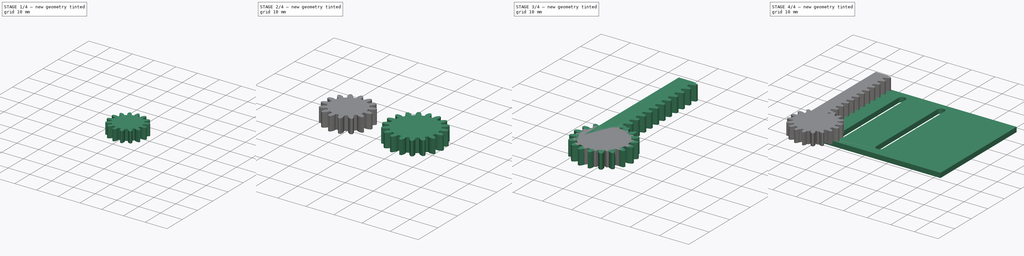
[diagram: build sequence overview — one tinted view per stage of 4, left to right]
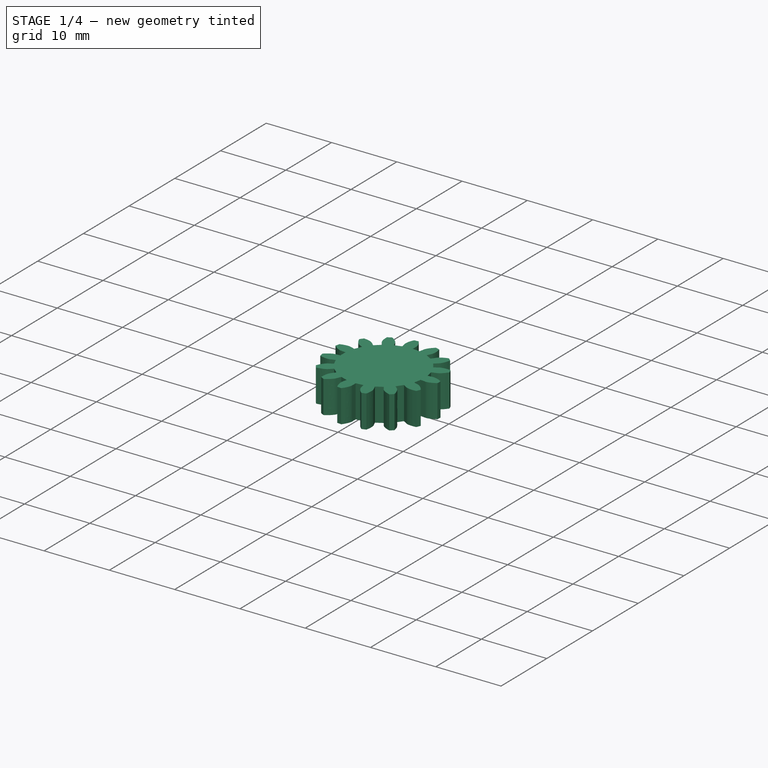
[diagram: stage 1 of 4 — iso view after this stage's code; geometry added in this stage tinted green]
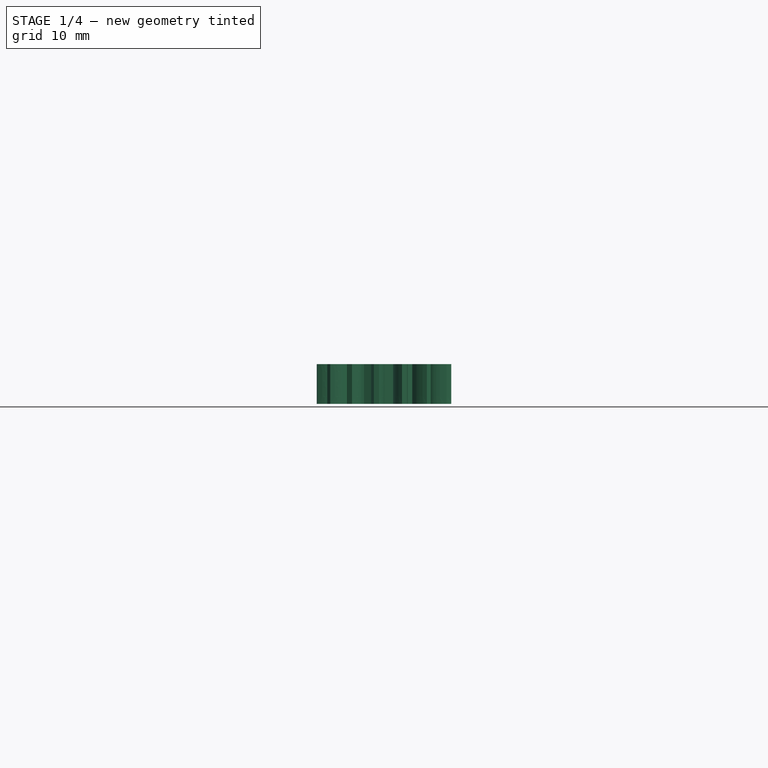
[diagram: stage 1 of 4 — front view after this stage's code; geometry added in this stage tinted green]
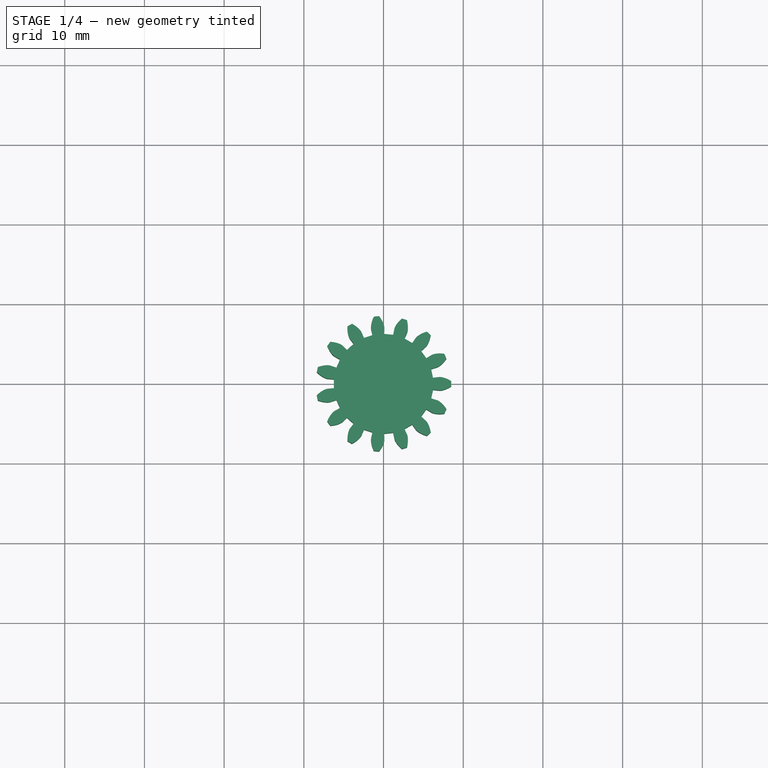
[diagram: stage 1 of 4 — top view after this stage's code; geometry added in this stage tinted green]
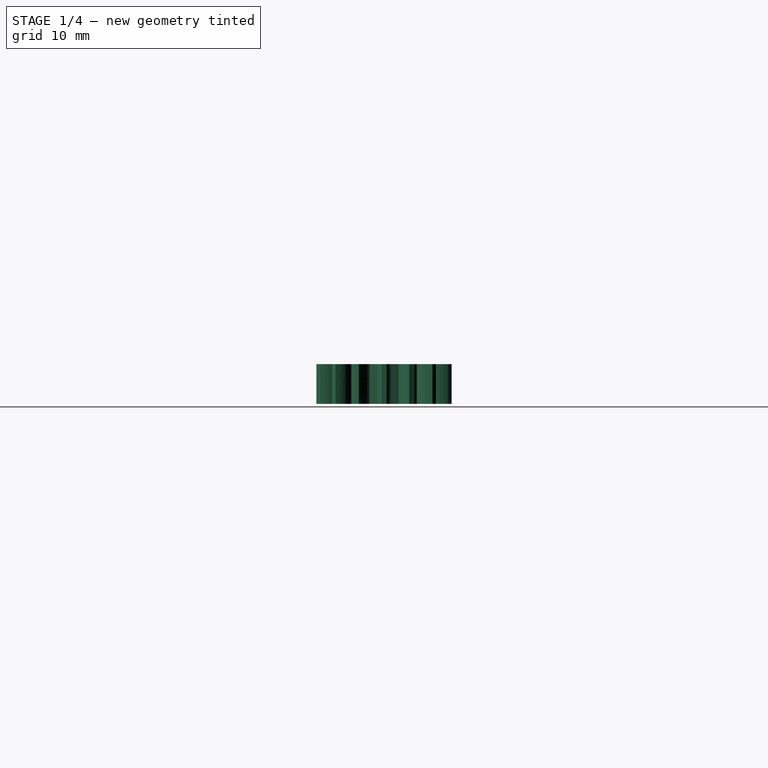
[diagram: stage 1 of 4 — right view after this stage's code; geometry added in this stage tinted green]
FCSTD DOCUMENT  (FreeCAD 0.18R14221 +674 (Git))
Label: gears
License: All rights reserved
LicenseURL: http://en.wikipedia.org/wiki/All_rights_reserved
objects: Part::FeaturePython×3, PartDesign::FeatureBase×3, Sketcher::SketchObject×3, PartDesign::Pad×3, PartDesign::Body×3
note: 18 computed .brp shape members not serialized (recipe doc carries the construction recipe); baked Part::Feature solids carry a one-line shape summary decoded from their .brp

FEATURE [PartDesign::Body] Body001  label="gear18"
  BaseFeature = -> InvoluteGear001
  Group = -> [BaseFeature001,Sketch002,Pad002]
  Origin = -> Origin001
  Placement = pos=(38,0,0) rot=(0,0,-1;1.41372rad)
  Tip = -> Pad002
FEATURE [Part::FeaturePython] InvoluteGear  # WARN: FeaturePython — macro-defined, semantics opaque (R4)
  backlash = 0
  beta = 0
  clearance = 0.25
  double_helix = false
  head = 0
  height = 5
  module = 1
  numpoints = 6
  pressure_angle = 20
  reversed_backlash = false
  shift = 0
  simple = false
  teeth = 15
  undercut = false
FEATURE [PartDesign::FeatureBase] BaseFeature002
  BaseFeature = -> InvoluteGear
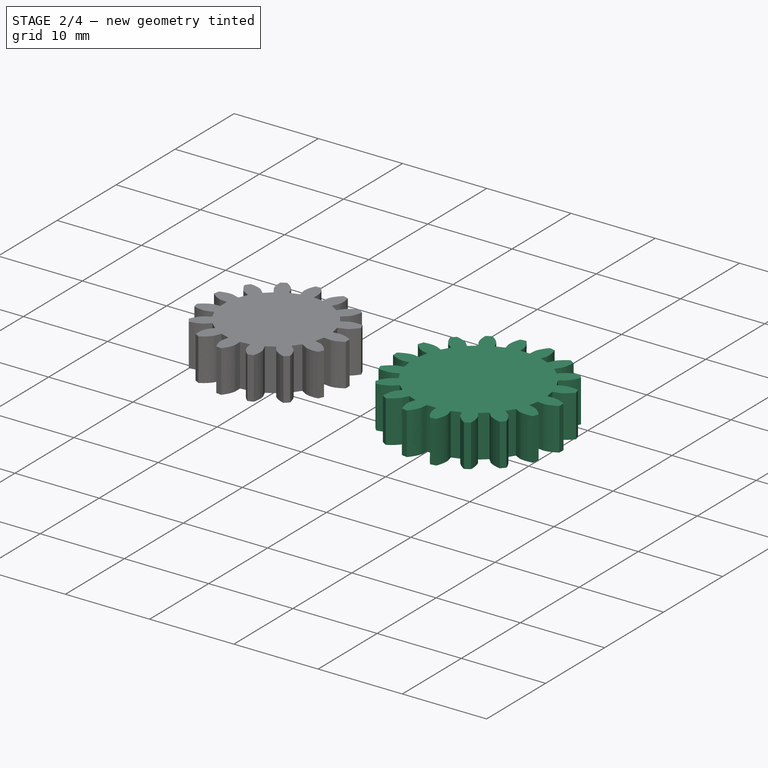
[diagram: stage 2 of 4 — iso view after this stage's code; geometry added in this stage tinted green]
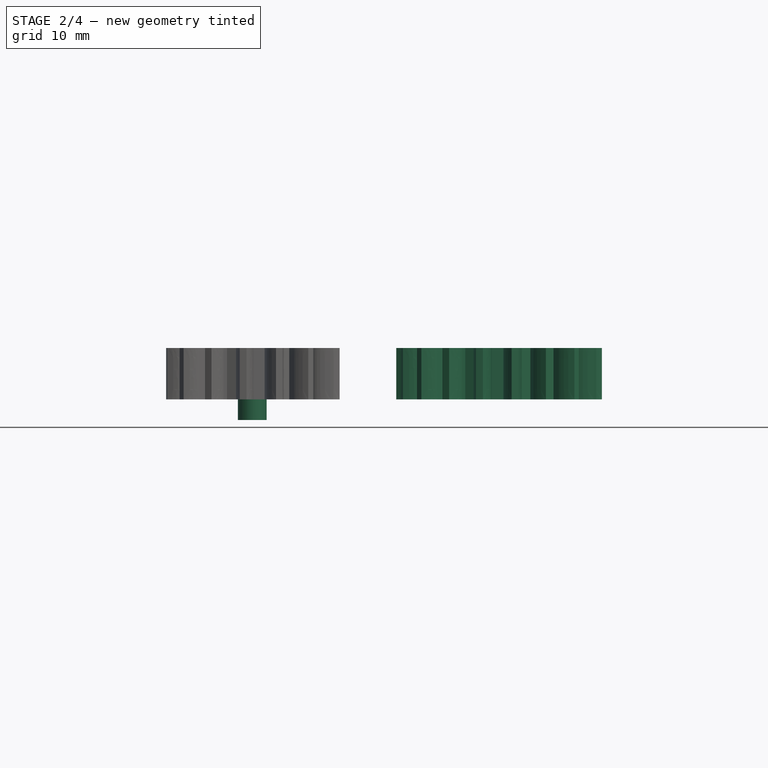
[diagram: stage 2 of 4 — front view after this stage's code; geometry added in this stage tinted green]
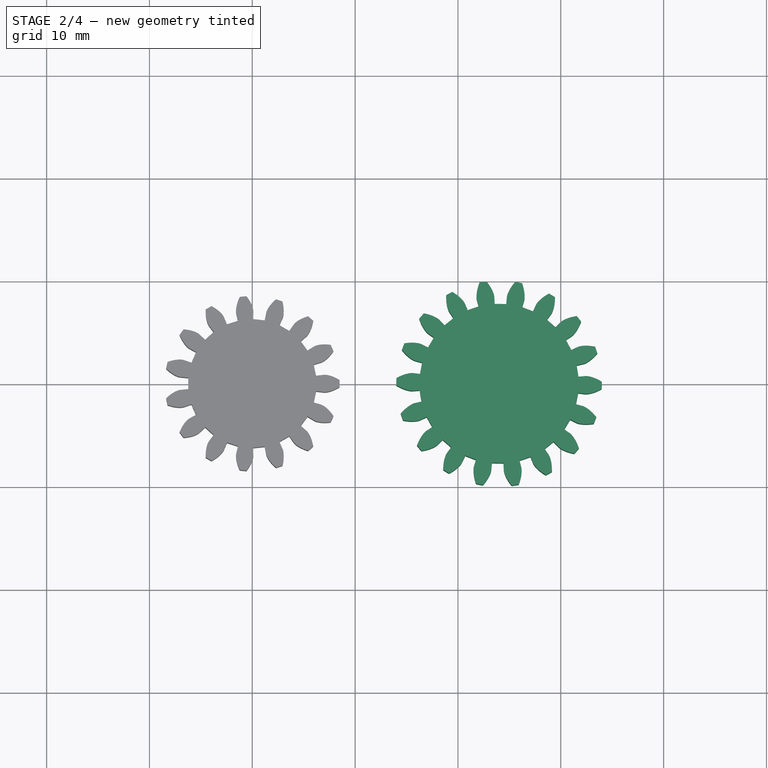
[diagram: stage 2 of 4 — top view after this stage's code; geometry added in this stage tinted green]
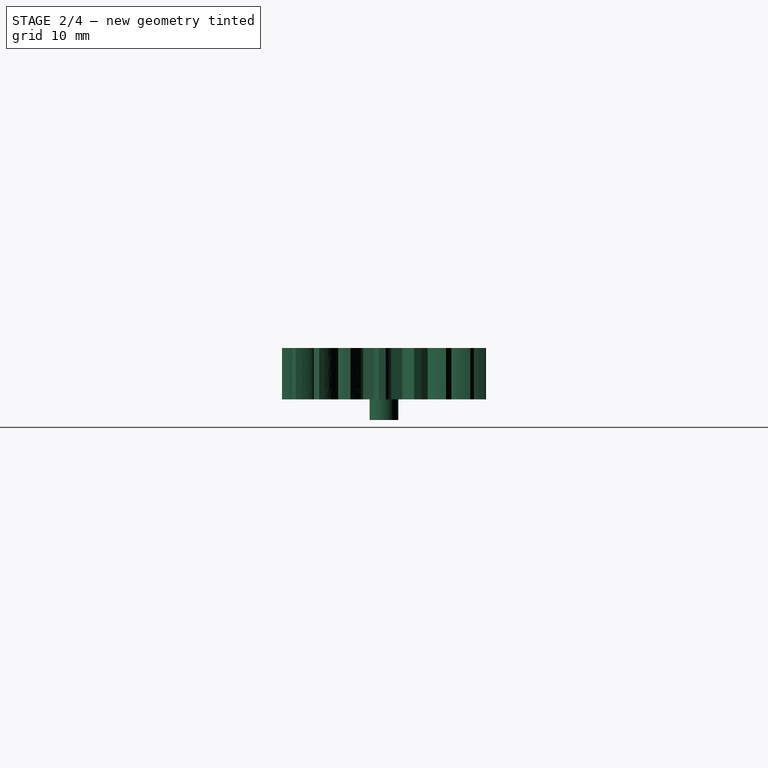
[diagram: stage 2 of 4 — right view after this stage's code; geometry added in this stage tinted green]
FEATURE [PartDesign::Body] Body  label="base"
  BaseFeature = -> InvoluteRack
  Group = -> [BaseFeature,Sketch,Pad001]
  Origin = -> Origin
  Tip = -> Pad001
FEATURE [Part::FeaturePython] InvoluteGear001  # WARN: FeaturePython — macro-defined, semantics opaque (R4)
  Placement = pos=(24,0,0) rot=(0,0,-1;1.41372rad)
  backlash = 0
  beta = 0
  clearance = 0.25
  double_helix = false
  head = 0
  height = 5
  module = 1
  numpoints = 6
  pressure_angle = 20
  reversed_backlash = false
  shift = 0
  simple = false
  teeth = 18
  undercut = false
FEATURE [Sketcher::SketchObject] Sketch001
  LastGeoID = 1
  MapMode = 5
  Support = -> [XY_Plane001]
  sketch-geometry (1):
    g0: Circle CenterX=0 CenterY=0 CenterZ=0 NormalX=0 NormalY=0 NormalZ=1 AngleXU=0 Radius=1.4
  constraints (2):
    c: Coincident(g0,g-1)
    c: Radius(g0) = 1.4
FEATURE [PartDesign::Pad] Pad
  BaseFeature = -> BaseFeature002
  ClaimChildren = false
  Length = 2
  Length2 = 100
  Profile = -> Sketch001
  Reversed = true
  Type = 0
FEATURE [PartDesign::Body] Body002  label="gear15"
  BaseFeature = -> InvoluteGear
  Group = -> [BaseFeature002,Sketch001,Pad]
  Origin = -> Origin002
  Placement = pos=(10,-9,0) rot=(0,0,-1;1.41372rad)
  Tip = -> Pad
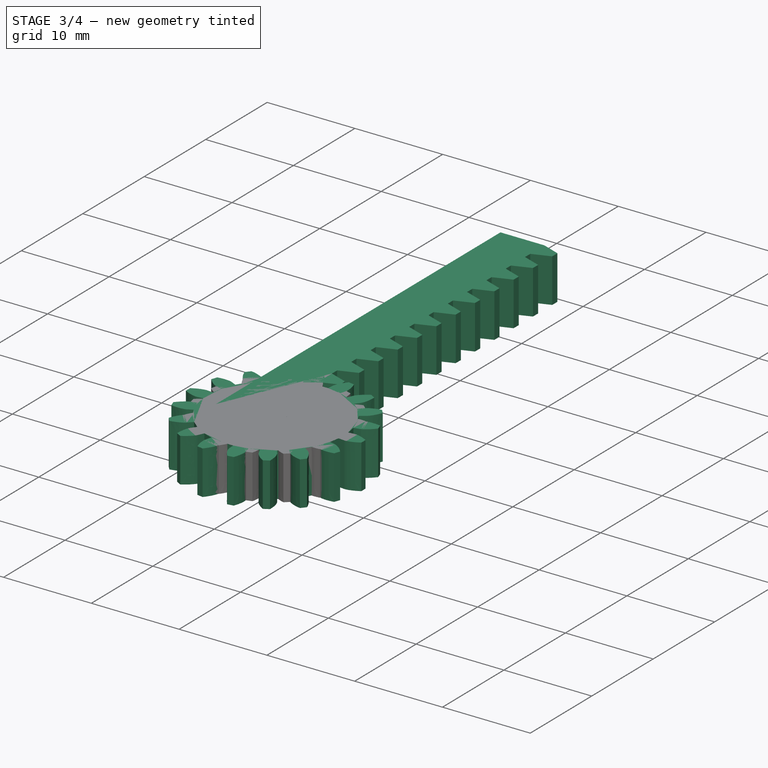
[diagram: stage 3 of 4 — iso view after this stage's code; geometry added in this stage tinted green]
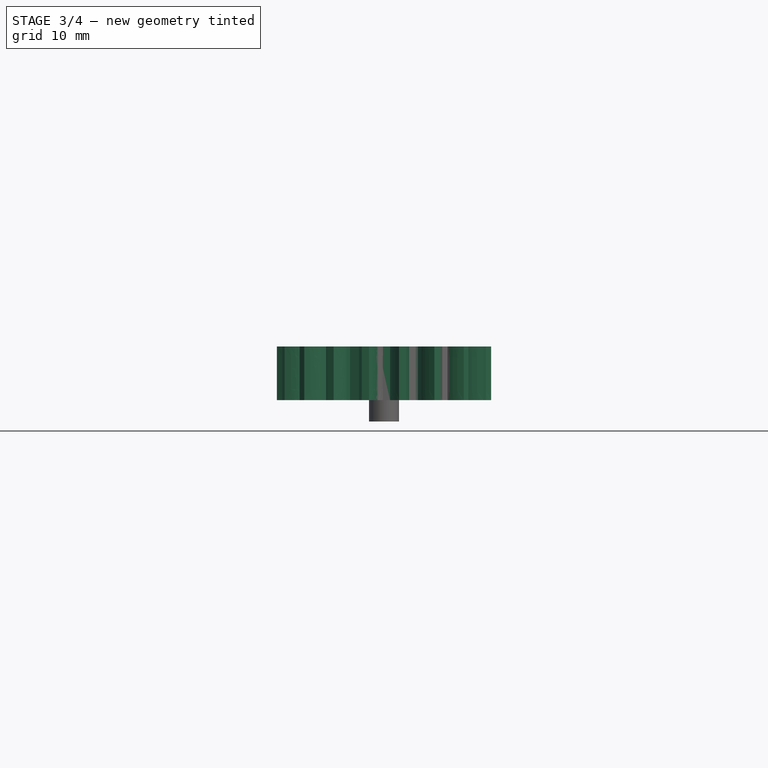
[diagram: stage 3 of 4 — front view after this stage's code; geometry added in this stage tinted green]
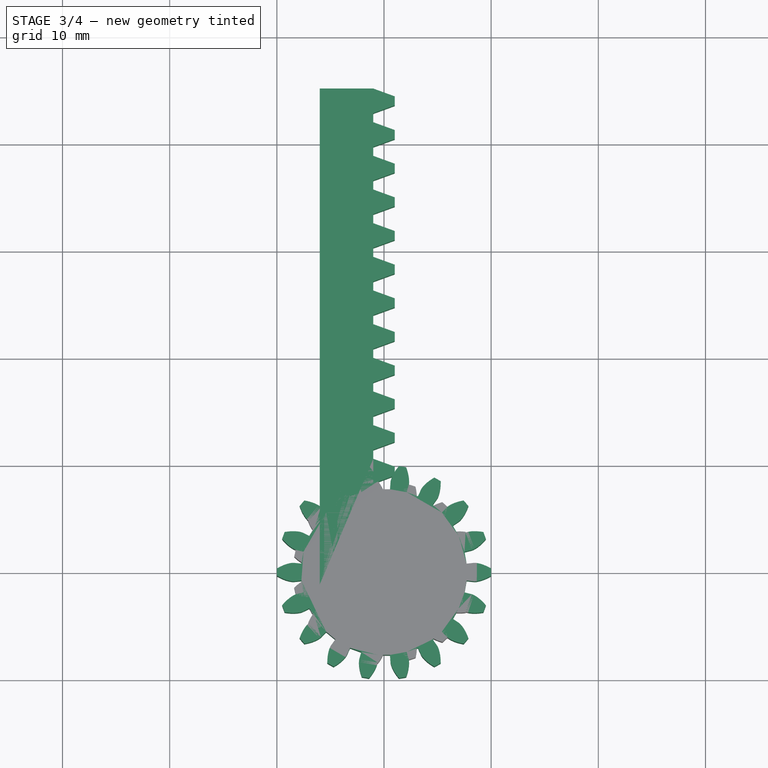
[diagram: stage 3 of 4 — top view after this stage's code; geometry added in this stage tinted green]
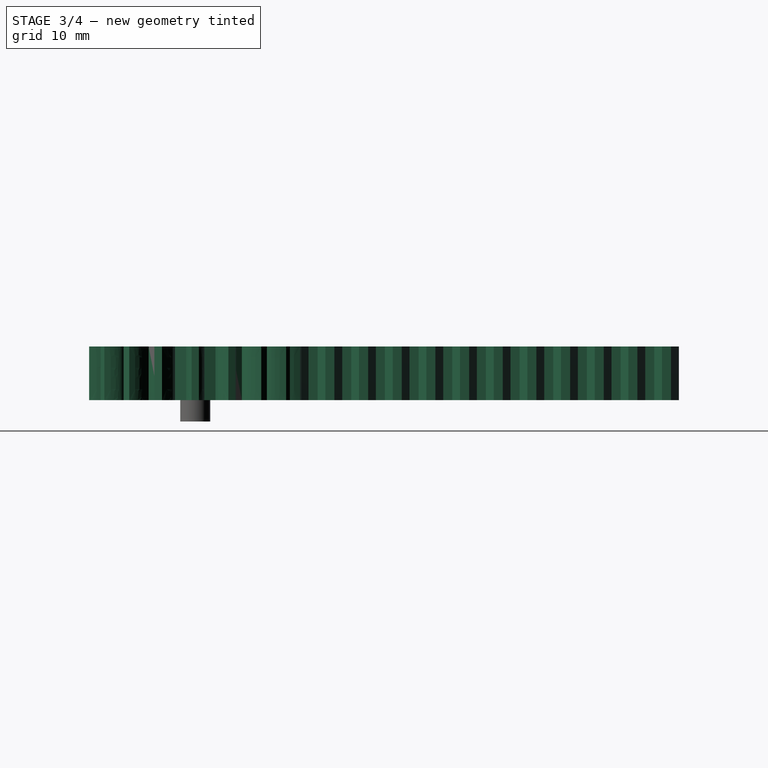
[diagram: stage 3 of 4 — right view after this stage's code; geometry added in this stage tinted green]
FEATURE [Part::FeaturePython] InvoluteRack  # WARN: FeaturePython — macro-defined, semantics opaque (R4)
  beta = 0
  double_helix = false
  head = 0
  height = 5
  module = 1
  pressure_angle = 20
  teeth = 15
  thickness = 5
FEATURE [PartDesign::FeatureBase] BaseFeature001
  BaseFeature = -> InvoluteGear001
FEATURE [Sketcher::SketchObject] Sketch002
  LastGeoID = 1
  MapMode = 5
  Support = -> [XY_Plane001]
  sketch-geometry (1):
    g0: Circle CenterX=0 CenterY=0 CenterZ=0 NormalX=0 NormalY=0 NormalZ=1 AngleXU=0 Radius=1.4
  constraints (2):
    c: Coincident(g0,g-1)
    c: Radius(g0) = 1.4
FEATURE [PartDesign::Pad] Pad002
  BaseFeature = -> BaseFeature001
  ClaimChildren = false
  Length = 2
  Length2 = 100
  Profile = -> Sketch002
  Reversed = true
  Type = 0
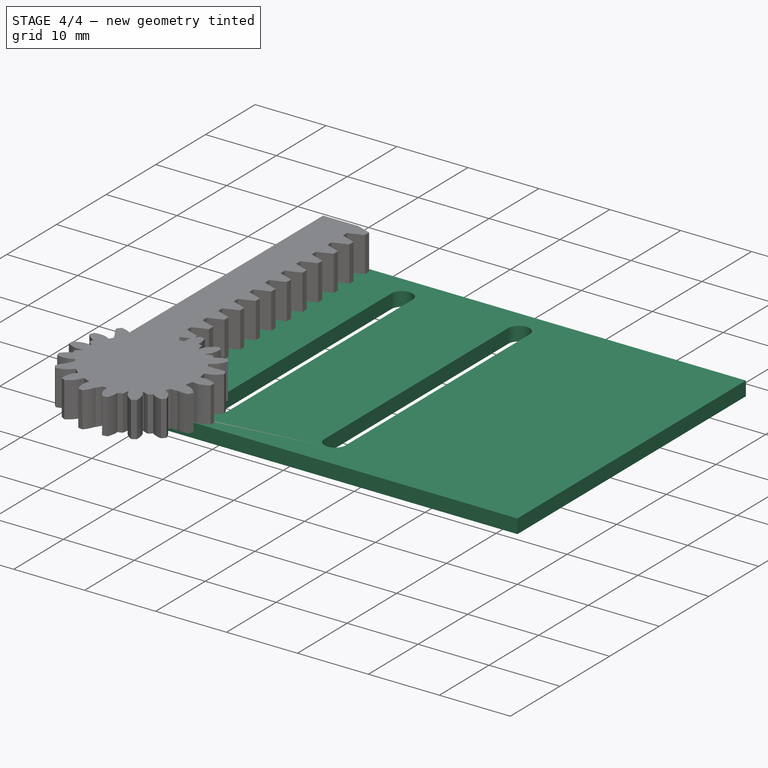
[diagram: stage 4 of 4 — iso view after this stage's code; geometry added in this stage tinted green]
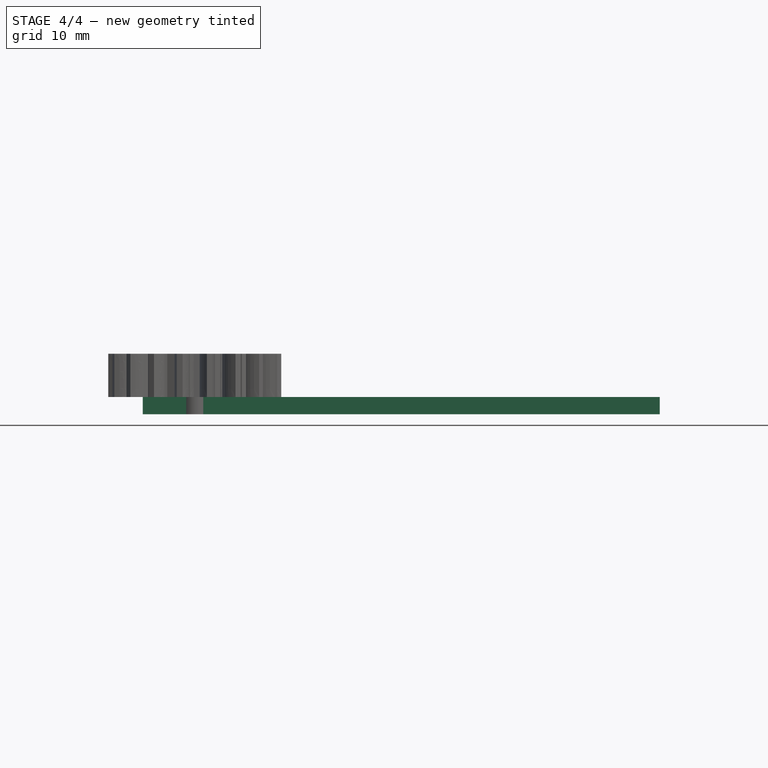
[diagram: stage 4 of 4 — front view after this stage's code; geometry added in this stage tinted green]
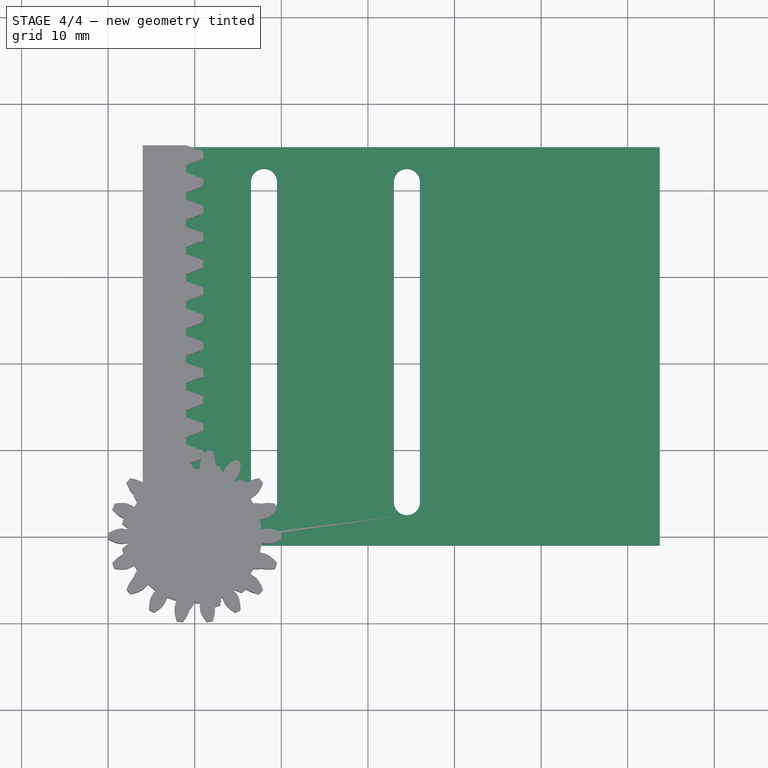
[diagram: stage 4 of 4 — top view after this stage's code; geometry added in this stage tinted green]
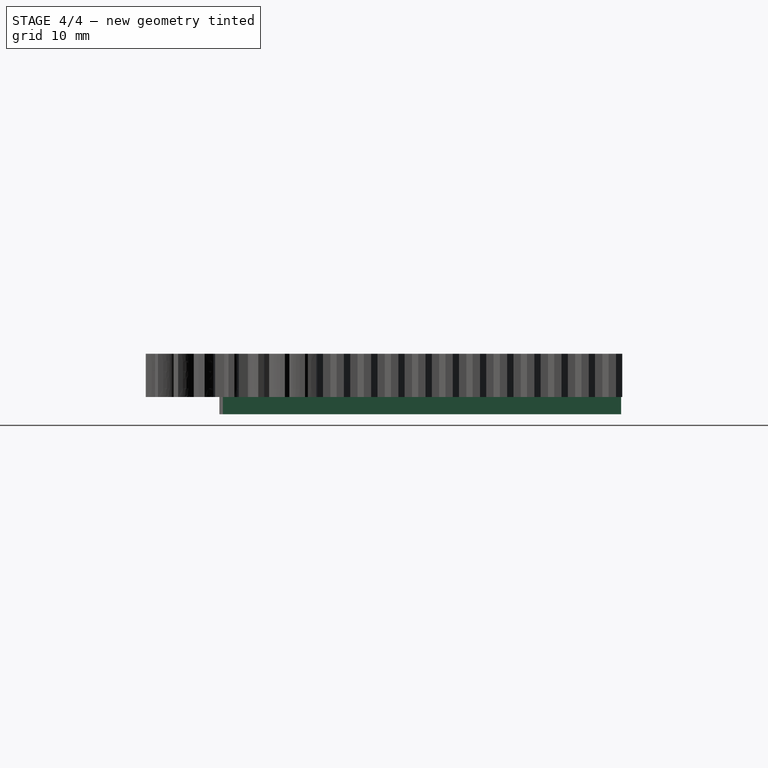
[diagram: stage 4 of 4 — right view after this stage's code; geometry added in this stage tinted green]
FEATURE [PartDesign::FeatureBase] BaseFeature
  BaseFeature = -> InvoluteRack
FEATURE [Sketcher::SketchObject] Sketch
  LastGeoID = 16
  MapMode = 5
  Placement = pos=(0,0,0) rot=(1,0,0;3.14159rad)
  Support = -> [BaseFeature]
  sketch-geometry (16):
    g0: LineSegment StartX=-6 StartY=-45 StartZ=0 EndX=53.7084 EndY=-45 EndZ=0
    g1: LineSegment StartX=53.7084 StartY=-45 StartZ=0 EndX=53.7084 EndY=1 EndZ=0
    g2: LineSegment StartX=53.7084 StartY=1 StartZ=0 EndX=-6 EndY=1 EndZ=0
    g3: LineSegment StartX=-6 StartY=1 StartZ=0 EndX=-6 EndY=-45 EndZ=0
    g4: ArcOfCircle CenterX=8 CenterY=-4 CenterZ=0 NormalX=0 NormalY=0 NormalZ=1 AngleXU=0 Radius=1.5 StartAngle=0 EndAngle=3.14159
    g5: ArcOfCircle CenterX=8 CenterY=-41 CenterZ=0 NormalX=0 NormalY=0 NormalZ=1 AngleXU=0 Radius=1.5 StartAngle=3.14159 EndAngle=6.28319
    g6: LineSegment StartX=6.5 StartY=-4 StartZ=0 EndX=6.5 EndY=-41 EndZ=0
    g7: LineSegment StartX=9.5 StartY=-4 StartZ=0 EndX=9.5 EndY=-41 EndZ=0
    g8: ArcOfCircle CenterX=24.5 CenterY=-4 CenterZ=0 NormalX=0 NormalY=0 NormalZ=1 AngleXU=0 Radius=1.5 StartAngle=0 EndAngle=3.14159
    g9: ArcOfCircle CenterX=24.5 CenterY=-41 CenterZ=0 NormalX=0 NormalY=0 NormalZ=1 AngleXU=0 Radius=1.5 StartAngle=3.14159 EndAngle=6.28319
    g10: LineSegment StartX=23 StartY=-4 StartZ=0 EndX=23 EndY=-41 EndZ=0
    g11: LineSegment StartX=26 StartY=-4 StartZ=0 EndX=26 EndY=-41 EndZ=0
    g12: LineSegment [constr] StartX=8 StartY=-4 StartZ=0 EndX=8 EndY=-41 EndZ=0
    g13: LineSegment [constr] StartX=24.5 StartY=-4 StartZ=0 EndX=24.5 EndY=-41 EndZ=0
    g14: LineSegment [constr] StartX=8 StartY=-4 StartZ=0 EndX=24.5 EndY=-4 EndZ=0
    g15: LineSegment [constr] StartX=8 StartY=-41 StartZ=0 EndX=24.5 EndY=-41 EndZ=0
  constraints (39):
    c: Coincident(g0,g1)
    c: Coincident(g1,g2)
    c: Coincident(g2,g3)
    c: Coincident(g3,g0)
    c: Horizontal(g0)
    c: Horizontal(g2)
    c: Vertical(g1)
    c: Vertical(g3)
    c: Tangent(g4,g7) = 1.5708
    c: Tangent(g4,g6) = -1.5708
    c: Tangent(g6,g5) = -1.5708
    c: Tangent(g7,g5) = 1.5708
    c: Vertical(g6)
    c: Equal(g4,g5)
    c: Tangent(g8,g11) = 1.5708
    c: Tangent(g8,g10) = -1.5708
    c: Tangent(g10,g9) = -1.5708
    c: Tangent(g11,g9) = 1.5708
    c: Vertical(g10)
    c: Equal(g8,g9)
    c: Radius(g4) = 1.5
    c: Radius(g8) = 1.5
    c: Coincident(g12,g4)
    c: Coincident(g12,g5)
    c: Coincident(g13,g8)
    c: Coincident(g13,g9)
    c: DistanceY(g4) = -4
    c: DistanceX(g2) = -6
    c: DistanceY(g2) = 1
    c: Distance(g4,g3) = 14
    c: Distance(g8,g12) = 16.5
    c: Coincident(g14,g4)
    c: Coincident(g14,g8)
    c: Horizontal(g14)
    c: Coincident(g15,g5)
    c: Coincident(g15,g9)
    c: Horizontal(g15)
    c: Distance(g5,g0) = 4
    c: Distance(g3) = 46
FEATURE [PartDesign::Pad] Pad001
  BaseFeature = -> BaseFeature
  ClaimChildren = false
  Length = 2
  Length2 = 100
  Profile = -> Sketch
  Type = 0
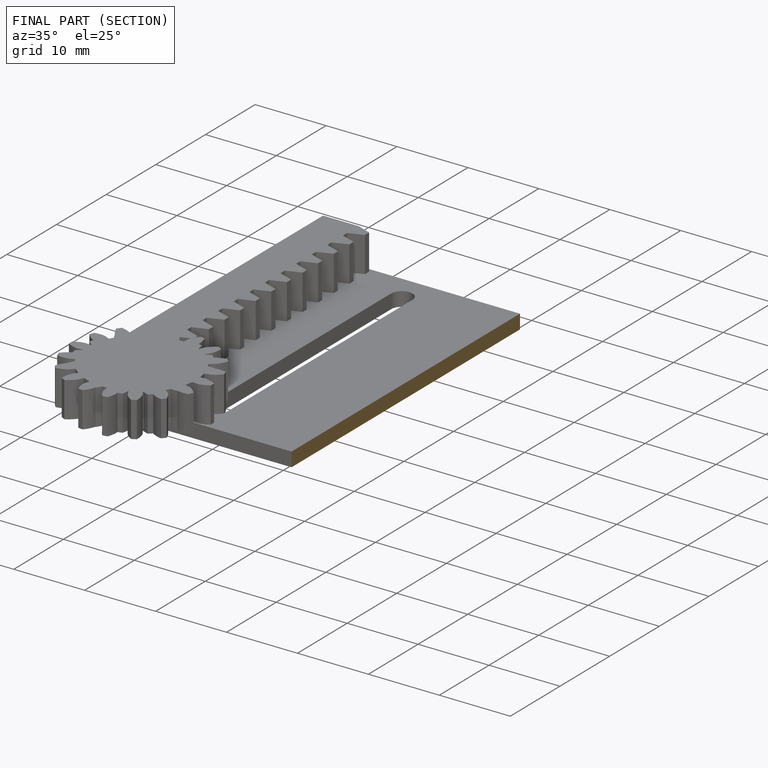
[diagram: finished part — half-section view (interior)]
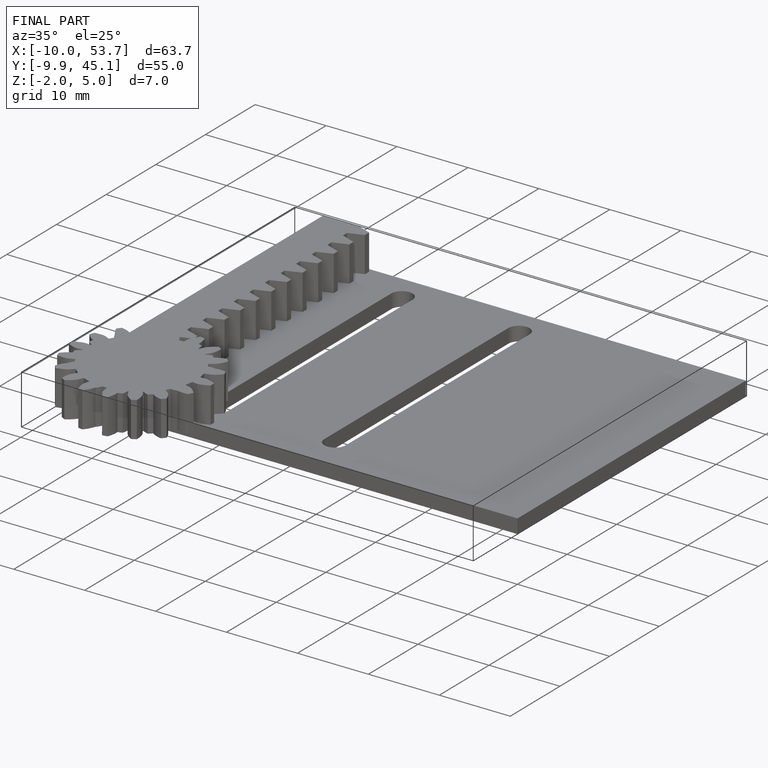
[diagram: finished part — iso view with bounding-box wireframe]
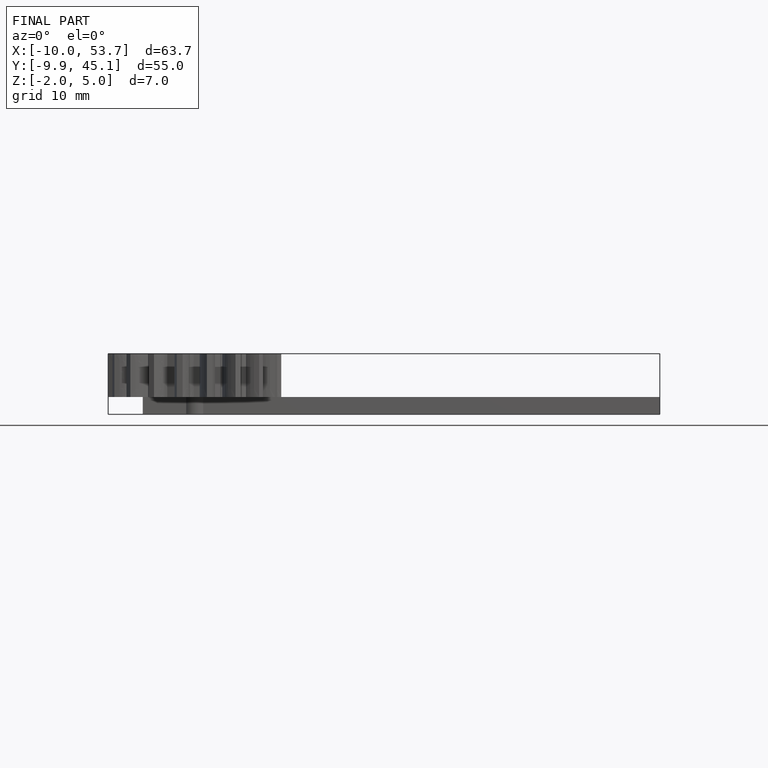
[diagram: finished part — front view with bounding-box wireframe]
